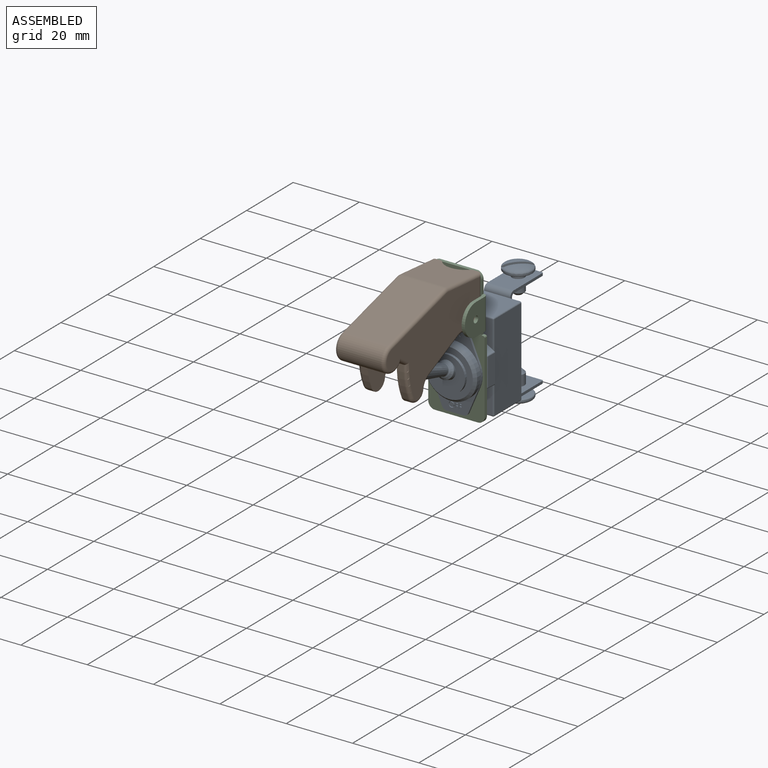
[diagram: assembled view]
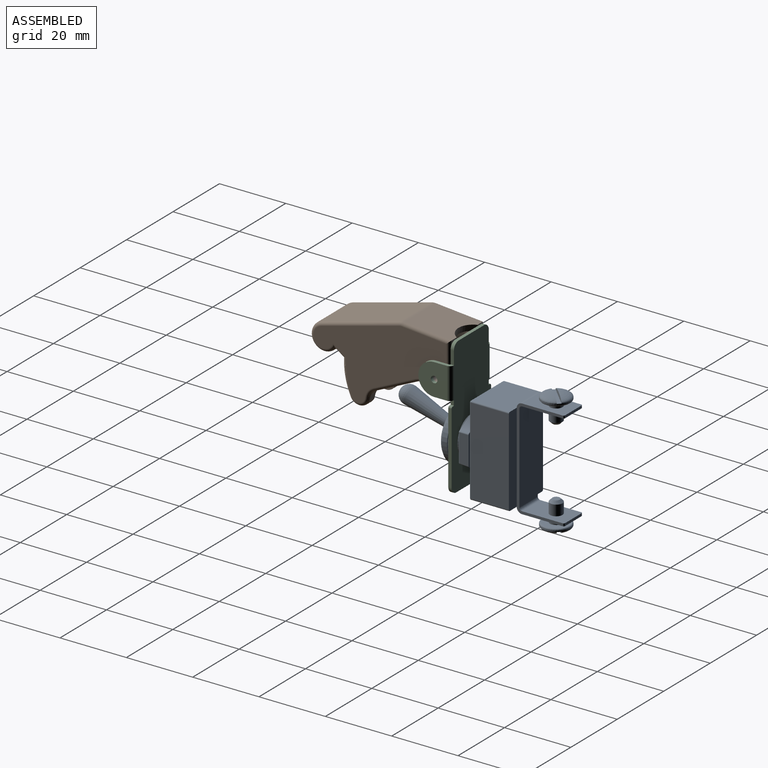
[diagram: assembled view, second angle]
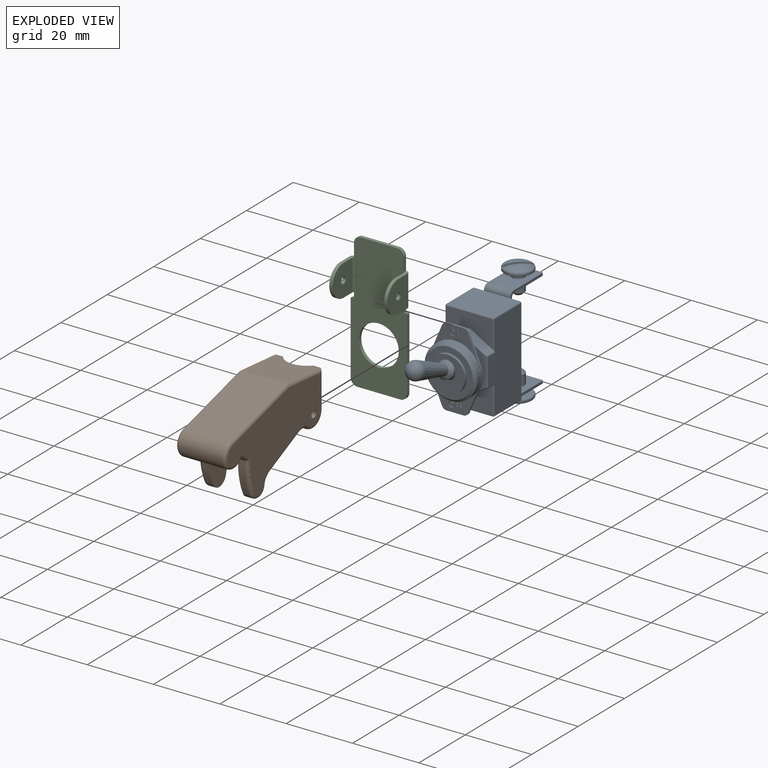
[diagram: exploded view]
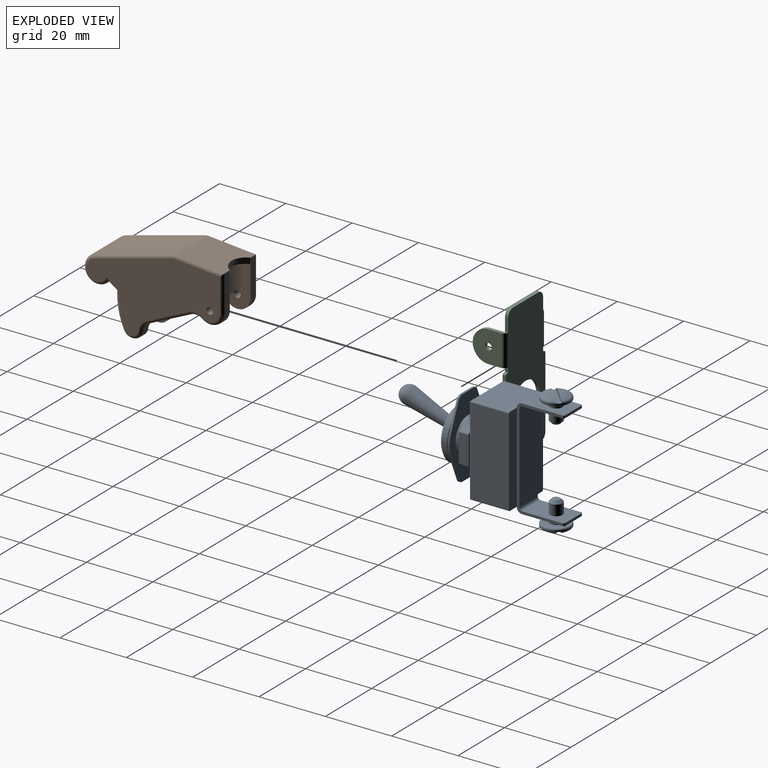
[diagram: exploded view, second angle]
ASSEMBLY  parts=3 mates=6
PART A: 168 faces, bbox 15.9x37.3x52.1 mm
  f0: plane 23.81x15.88mm, normal (0,0,1), area 190.6mm2, adj f92,f93,f94,f95,f96,f97,f98,f99
  f1: plane 10.72x10.72mm, normal (0,0,1), area 68.6mm2, adj f100,f110
  f2: cylinder r=5.36mm len=10.72mm, axis (0,0,-1), area 80.2mm2, adj f3,f91
  f3: plane 16.68x14.44mm, normal (0,0,1), area 90.4mm2, adj f2,f74,f79,f80,f85,f86,f90
  f4: plane 13.9x8.18mm, normal (0,0,1), area 85.7mm2, adj f39,f40,f44,f68,f69,f73
  f5: plane 13.9x8.18mm, normal (0,0,1), area 85.7mm2, adj f34,f39,f40,f66,f71,f87
  f6: revolved ~6.83x6.83mm, area 27.6mm2, adj f56,f60
  f7: revolved ~6.83x6.83mm, area 27.6mm2, adj f56,f61
  f8: revolved ~6.83x6.83mm, area 27.6mm2, adj f54,f57
  f9: revolved ~6.83x6.83mm, area 27.6mm2, adj f54,f58
  f10: plane 12.7x7.94mm, normal (0,-1,0), area 89.6mm2, adj f24,f25,f27,f28,f29,f30,f49
  f11: plane 12.7x7.94mm, normal (0,1,0), area 89.6mm2, adj f25,f26,f27,f28,f29,f30,f48
  f12: plane 12.7x7.94mm, normal (0,-1,0), area 89.6mm2, adj f20,f21,f27,f28,f31,f32,f47
  f13: plane 12.7x7.94mm, normal (0,1,0), area 89.6mm2, adj f21,f22,f27,f28,f31,f32,f46
  f14: plane 26.99x3.37mm, normal (0,0,-1), area 91mm2, adj f15,f17,f18,f27,f33,f38
  f15: plane 13.89x11.51mm, normal (0,-1,0), area 159.9mm2, adj f14,f16,f20,f33,f34,f35
  f16: plane 26.99x3.37mm, normal (0,0,-1), area 91mm2, adj f15,f17,f19,f28,f35,f41
  f17: plane 13.89x11.51mm, normal (0,1,0), area 159.9mm2, adj f14,f16,f26,f38,f41,f44
  f18: plane 26.19x11.51mm, normal (1,0,0), area 301.5mm2, adj f14,f33,f38,f39
  f19: plane 26.19x11.51mm, normal (-1,0,0), area 301.5mm2, adj f16,f35,f40,f41
  f20: cylinder r=1.59mm len=7.94mm, axis (-1,0,0), area 19.8mm2, adj f12,f15,f27,f28
  f21: plane 7.14x0.79mm, normal (0,0,-1), area 5.7mm2, adj f12,f13,f31,f32
  f22: cylinder r=0.79mm len=7.94mm, axis (-1,0,0), area 9.9mm2, adj f13,f23,f27,f28
  f23: plane 26.99x7.94mm, normal (0,0,-1), area 214.2mm2, adj f22,f24,f27,f28
  f24: cylinder r=0.79mm len=7.94mm, axis (-1,0,0), area 9.9mm2, adj f10,f23,f27,f28
  f25: plane 7.14x0.79mm, normal (0,0,-1), area 5.7mm2, adj f10,f11,f29,f30
  f26: cylinder r=1.59mm len=7.94mm, axis (-1,0,0), area 19.8mm2, adj f11,f17,f27,f28
  f27: plane 30.16x13.89mm, normal (1,0,0), area 43.9mm2, adj f10,f11,f12,f13,f14,f20,f22,f23
  f28: plane 30.16x13.89mm, normal (-1,0,0), area 43.9mm2, adj f10,f11,f12,f13,f16,f20,f22,f23
  f29: cylinder r=0.4mm len=0.79mm, axis (0,1,0), area 0.5mm2, adj f10,f11,f25,f27
  f30: cylinder r=0.4mm len=0.79mm, axis (0,-1,0), area 0.5mm2, adj f10,f11,f25,f28
  f31: cylinder r=0.4mm len=0.79mm, axis (0,-1,0), area 0.5mm2, adj f12,f13,f21,f28
  f32: cylinder r=0.4mm len=0.79mm, axis (0,1,0), area 0.5mm2, adj f12,f13,f21,f27
  f33: cylinder r=0.4mm len=11.51mm, axis (0,0,1), area 7.2mm2, adj f14,f15,f18,f36
  f34: cylinder r=0.4mm len=13.89mm, axis (-1,0,0), area 8.7mm2, adj f5,f15,f36,f37
  f35: cylinder r=0.4mm len=11.51mm, axis (0,0,-1), area 7.2mm2, adj f15,f16,f19,f37
  f36: sphere r=0.4mm, area 0.2mm2, adj f33,f34,f39
  f37: sphere r=0.4mm, area 0.3mm2, adj f34,f35,f40
  f38: cylinder r=0.4mm len=11.51mm, axis (0,0,-1), area 7.2mm2, adj f14,f17,f18,f42
  f39: cylinder r=0.4mm len=26.19mm, axis (0,1,0), area 16.3mm2, adj f4,f5,f18,f36,f42,f65
  f40: cylinder r=0.4mm len=26.19mm, axis (0,-1,0), area 16.3mm2, adj f4,f5,f19,f37,f43,f72
  f41: cylinder r=0.4mm len=11.51mm, axis (0,0,1), area 7.2mm2, adj f16,f17,f19,f43
  f42: sphere r=0.4mm, area 0.2mm2, adj f38,f39,f44
  f43: sphere r=0.4mm, area 0.3mm2, adj f40,f41,f44
  f44: cylinder r=0.4mm len=13.89mm, axis (-1,0,0), area 8.7mm2, adj f4,f17,f42,f43
  f45: plane 2.18x2.18mm, normal (0,1,0), area 3.7mm2, adj f52
  f46: cylinder r=1.89mm len=3.77mm, axis (0,-1,0), area 37.6mm2, adj f13,f52
  f47: cylinder r=1.89mm len=3.77mm, axis (0,-1,0), area 18.8mm2, adj f12,f53
  f48: cylinder r=1.89mm len=3.77mm, axis (0,-1,0), area 18.8mm2, adj f11,f55
  f49: cylinder r=1.89mm len=3.77mm, axis (0,-1,0), area 37.6mm2, adj f10,f51
  f50: plane 2.18x2.18mm, normal (0,-1,0), area 3.7mm2, adj f51
  f51: cone r=1.09mm half-angle=45deg, axis (0,1,0), area 10.5mm2, adj f49,f50
  f52: cone r=1.89mm half-angle=45deg, axis (0,-1,0), area 10.5mm2, adj f45,f46
  f53: plane 7.74x7.74mm, normal (0,1,0), area 35.9mm2, adj f47,f64
  f54: cylinder r=4.27mm len=8.53mm, axis (0,1,0), area 10.6mm2, adj f8,f9,f59,f64
  f55: plane 7.74x7.74mm, normal (0,-1,0), area 35.9mm2, adj f48,f63
  f56: cylinder r=4.27mm len=8.53mm, axis (0,-1,0), area 10.6mm2, adj f6,f7,f62,f63
  f57: plane 5.98x5.97mm, normal (-0.71,0,-0.71), area 7.8mm2, adj f8,f59
  f58: plane 5.98x5.97mm, normal (0.71,0,0.71), area 7.8mm2, adj f9,f59
  f59: plane 6.82x6.81mm, normal (0,-1,0), area 10.1mm2, adj f54,f57,f58
  f60: plane 5.98x5.97mm, normal (-0.71,0,-0.71), area 7.8mm2, adj f6,f62
  f61: plane 5.98x5.97mm, normal (0.71,0,0.71), area 7.8mm2, adj f7,f62
  f62: plane 6.82x6.81mm, normal (0,1,0), area 10.1mm2, adj f56,f60,f61
  f63: torus R=3.87mm, axis (0,1,0), area 16.1mm2, adj f55,f56
  f64: torus R=3.87mm, axis (0,-1,0), area 16.1mm2, adj f53,f54
  f65: plane 9.86x0.8mm, normal (0,0,-1), area 7.4mm2, adj f39,f66,f67,f68,f75,f81
  f66: plane 7.34x4.31mm, normal (0.5,-0.87,0.04), area 23.5mm2, adj f5,f65,f81,f86,f87
  f67: plane 8.48x2.8mm, normal (1,0,0.04), area 23.5mm2, adj f65,f75,f80,f81
  f68: plane 7.34x4.31mm, normal (0.5,0.87,0.04), area 23.5mm2, adj f4,f65,f73,f74,f75
  f69: plane 7.34x4.31mm, normal (-0.5,0.87,0.04), area 23.5mm2, adj f4,f72,f73,f78,f79
  f70: plane 8.48x2.8mm, normal (-1,0,0.04), area 23.5mm2, adj f72,f78,f84,f85
  f71: plane 7.34x4.31mm, normal (-0.5,-0.87,0.04), area 23.5mm2, adj f5,f72,f84,f87,f90
  f72: plane 9.86x0.8mm, normal (0,0,-1), area 7.4mm2, adj f40,f69,f70,f71,f78,f84
  f73: cylinder r=0.4mm len=2.8mm, axis (0,0.05,-1), area 1.2mm2, adj f4,f68,f69,f76
  f74: cylinder r=0.4mm len=7.42mm, axis (-0.87,0.5,0), area 5.1mm2, adj f3,f68,f76,f77
  f75: cylinder r=0.4mm len=2.8mm, axis (0.04,0.03,-1), area 1.2mm2, adj f65,f67,f68,f77
  f76: sphere r=0.4mm, area 0.2mm2, adj f73,f74,f79
  f77: sphere r=0.4mm, area 0.1mm2, adj f74,f75,f80
  f78: cylinder r=0.4mm len=2.8mm, axis (-0.04,0.03,-1), area 1.2mm2, adj f69,f70,f72,f82
  f79: cylinder r=0.4mm len=7.42mm, axis (-0.87,-0.5,0), area 5.1mm2, adj f3,f69,f76,f82
  f80: cylinder r=0.4mm len=8.34mm, axis (0,1,0), area 5.1mm2, adj f3,f67,f77,f83
  f81: cylinder r=0.4mm len=2.8mm, axis (0.04,-0.03,-1), area 1.2mm2, adj f65,f66,f67,f83
  f82: sphere r=0.4mm, area 0.1mm2, adj f78,f79,f85
  f83: sphere r=0.4mm, area 0.1mm2, adj f80,f81,f86
  f84: cylinder r=0.4mm len=2.8mm, axis (-0.04,-0.03,-1), area 1.2mm2, adj f70,f71,f72,f88
  f85: cylinder r=0.4mm len=8.34mm, axis (0,-1,0), area 5.1mm2, adj f3,f70,f82,f88
  f86: cylinder r=0.4mm len=7.42mm, axis (0.87,0.5,0), area 5.1mm2, adj f3,f66,f83,f89
  f87: cylinder r=0.4mm len=2.8mm, axis (0,-0.05,-1), area 1.2mm2, adj f5,f66,f71,f89
  f88: sphere r=0.4mm, area 0.1mm2, adj f84,f85,f90
  f89: sphere r=0.4mm, area 0.2mm2, adj f86,f87,f90
  f90: cylinder r=0.4mm len=7.42mm, axis (0.87,-0.5,0), area 5.1mm2, adj f3,f71,f88,f89
  f91: plane 23.81x15.88mm, normal (0,0,-1), area 196.5mm2, adj f2,f92,f93,f94,f95,f96,f97,f98
  f92: plane 7.84x3.33mm, normal (-0.92,0.39,0), area 5.1mm2, adj f0,f91,f99,f108
  f93: plane 5.04x0.6mm, normal (0,1,0), area 3mm2, adj f0,f91,f107,f108
  f94: plane 7.84x3.33mm, normal (0.92,0.39,0), area 5.1mm2, adj f0,f91,f95,f107
  f95: cylinder r=7.94mm len=6.2mm, axis (0,0,1), area 3.8mm2, adj f0,f91,f94,f96
  f96: plane 7.84x3.33mm, normal (0.92,-0.39,0), area 5.1mm2, adj f0,f91,f95,f105
  f97: plane 5.04x0.6mm, normal (0,-1,0), area 3mm2, adj f0,f91,f105,f106
  f98: plane 7.84x3.33mm, normal (-0.92,-0.39,0), area 5.1mm2, adj f0,f91,f99,f106
  f99: cylinder r=7.94mm len=6.2mm, axis (0,0,1), area 3.8mm2, adj f0,f91,f92,f98
  f100: cylinder r=5.36mm len=10.72mm, axis (0,0,-1), area 26.7mm2, adj f1,f101
  f101: plane 14.29x14.29mm, normal (0,0,1), area 70.1mm2, adj f100,f109
  f102: cylinder r=7.94mm len=15.88mm, axis (0,0,1), area 79.2mm2, adj f103,f109
  f103: plane 15.88x15.88mm, normal (0,0,-1), area 107.7mm2, adj f102,f104
  f104: cylinder r=5.36mm len=10.72mm, axis (0,0,-1), area 6.7mm2, adj f0,f103
  f105: cylinder r=1.59mm len=1.46mm, axis (0,0,1), area 1.1mm2, adj f0,f91,f96,f97
  f106: cylinder r=1.59mm len=1.46mm, axis (0,0,1), area 1.1mm2, adj f0,f91,f97,f98
  f107: cylinder r=1.59mm len=1.46mm, axis (0,0,1), area 1.1mm2, adj f0,f91,f93,f94
  f108: cylinder r=1.59mm len=1.46mm, axis (0,0,1), area 1.1mm2, adj f0,f91,f92,f93
  f109: cone r=7.14mm half-angle=45deg, axis (0,0,-1), area 53.2mm2, adj f101,f102
  f110: cylinder r=2.54mm len=5.42mm, axis (0,0.34,0.94), area 15mm2, adj f1,f114
  f111: cone r=1.59mm half-angle=4.9deg, axis (0,0.34,0.94), area 165.4mm2, adj f112,f113
  f112: sphere r=2.68mm, area 48.9mm2, adj f111
  f113: torus R=2.02mm, axis (0,-0.34,-0.94), area 6.1mm2, adj f111,f114
  f114: cone r=1.93mm half-angle=38.4deg, axis (0,-0.34,-0.94), area 13.8mm2, adj f110,f113
  f115: extruded ~0.84x0.82mm, area 0.5mm2, adj f0,f116,f118,f119
  f116: extruded ~0.84x0.83mm, area 0.5mm2, adj f0,f115,f117,f119
  f117: extruded ~0.84x0.83mm, area 0.5mm2, adj f0,f116,f118,f119
  f118: extruded ~0.84x0.83mm, area 0.5mm2, adj f0,f115,f117,f119
  f119: plane 1.67x1.67mm, normal (0,0,1), area 0.7mm2, adj f115,f116,f117,f118,f120,f121,f122,f123
  f120: extruded ~0.7x0.67mm, area 0.4mm2, adj f119,f121,f123,f124
  f121: extruded ~0.7x0.67mm, area 0.4mm2, adj f119,f120,f122,f124
  f122: extruded ~0.69x0.67mm, area 0.4mm2, adj f119,f121,f123,f124
  f123: extruded ~0.69x0.68mm, area 0.4mm2, adj f119,f120,f122,f124
  f124: plane 1.38x1.34mm, normal (0,0,1), area 1.5mm2, adj f120,f121,f122,f123
  f125: plane 0.4x0.14mm, normal (0,1,0), area 0.1mm2, adj f0,f126,f134,f135
  f126: plane 1.59x0.4mm, normal (1,0,0), area 0.6mm2, adj f0,f125,f127,f135
  f127: plane 0.4x0.03mm, normal (0,-1,0), area 0mm2, adj f0,f126,f128,f135
  f128: plane 1.25x1.05mm, normal (-0.77,-0.64,0), area 0.6mm2, adj f0,f127,f129,f135
  f129: plane 1.25x0.4mm, normal (1,0,0), area 0.5mm2, adj f0,f128,f130,f135
  f130: plane 0.4x0.14mm, normal (0,-1,0), area 0.1mm2, adj f0,f129,f131,f135
  f131: plane 1.59x0.4mm, normal (-1,0,0), area 0.6mm2, adj f0,f130,f132,f135
  f132: plane 0.4x0.03mm, normal (0,1,0), area 0mm2, adj f0,f131,f133,f135
  f133: plane 1.25x1.05mm, normal (0.77,0.64,0), area 0.6mm2, adj f0,f132,f134,f135
  f134: plane 1.25x0.4mm, normal (-1,0,0), area 0.5mm2, adj f0,f125,f133,f135
  f135: plane 1.59x1.22mm, normal (0,0,1), area 0.6mm2, adj f125,f126,f127,f128,f129,f130,f131,f132
  f136: extruded ~0.84x0.82mm, area 0.5mm2, adj f0,f137,f139,f140
  f137: extruded ~0.84x0.83mm, area 0.5mm2, adj f0,f136,f138,f140
  f138: extruded ~0.84x0.83mm, area 0.5mm2, adj f0,f137,f139,f140
  f139: extruded ~0.84x0.83mm, area 0.5mm2, adj f0,f136,f138,f140
  f140: plane 1.67x1.67mm, normal (0,0,1), area 0.7mm2, adj f136,f137,f138,f139,f141,f142,f143,f144
  f141: extruded ~0.7x0.67mm, area 0.4mm2, adj f140,f142,f144,f145
  f142: extruded ~0.7x0.67mm, area 0.4mm2, adj f140,f141,f143,f145
  f143: extruded ~0.69x0.67mm, area 0.4mm2, adj f140,f142,f144,f145
  f144: extruded ~0.69x0.68mm, area 0.4mm2, adj f140,f141,f143,f145
  f145: plane 1.38x1.34mm, normal (0,0,1), area 1.5mm2, adj f141,f142,f143,f144
  f146: plane 1.59x0.4mm, normal (1,0,0), area 0.6mm2, adj f0,f147,f155,f156
  f147: plane 0.77x0.4mm, normal (0,-1,0), area 0.3mm2, adj f0,f146,f148,f156
  f148: plane 0.4x0.16mm, normal (-1,0,0), area 0.1mm2, adj f0,f147,f149,f156
  f149: plane 0.63x0.4mm, normal (0,1,0), area 0.3mm2, adj f0,f148,f150,f156
  f150: plane 0.49x0.4mm, normal (-1,0,0), area 0.2mm2, adj f0,f149,f151,f156
  f151: plane 0.63x0.4mm, normal (0,-1,0), area 0.3mm2, adj f0,f150,f152,f156
  f152: plane 0.4x0.16mm, normal (-1,0,0), area 0.1mm2, adj f0,f151,f153,f156
  f153: plane 0.63x0.4mm, normal (0,1,0), area 0.3mm2, adj f0,f152,f154,f156
  f154: plane 0.77x0.4mm, normal (-1,0,0), area 0.3mm2, adj f0,f153,f155,f156
  f155: plane 0.4x0.14mm, normal (0,1,0), area 0.1mm2, adj f0,f146,f154,f156
  f156: plane 1.59x0.77mm, normal (0,0,1), area 0.4mm2, adj f146,f147,f148,f149,f150,f151,f152,f153
  f157: plane 1.59x0.4mm, normal (1,0,0), area 0.6mm2, adj f0,f158,f166,f167
  f158: plane 0.77x0.4mm, normal (0,-1,0), area 0.3mm2, adj f0,f157,f159,f167
  f159: plane 0.4x0.16mm, normal (-1,0,0), area 0.1mm2, adj f0,f158,f160,f167
  f160: plane 0.63x0.4mm, normal (0,1,0), area 0.3mm2, adj f0,f159,f161,f167
  f161: plane 0.49x0.4mm, normal (-1,0,0), area 0.2mm2, adj f0,f160,f162,f167
  f162: plane 0.63x0.4mm, normal (0,-1,0), area 0.3mm2, adj f0,f161,f163,f167
  f163: plane 0.4x0.16mm, normal (-1,0,0), area 0.1mm2, adj f0,f162,f164,f167
  f164: plane 0.63x0.4mm, normal (0,1,0), area 0.3mm2, adj f0,f163,f165,f167
  f165: plane 0.77x0.4mm, normal (-1,0,0), area 0.3mm2, adj f0,f164,f166,f167
  f166: plane 0.4x0.14mm, normal (0,1,0), area 0.1mm2, adj f0,f157,f165,f167
  f167: plane 1.59x0.77mm, normal (0,0,1), area 0.4mm2, adj f157,f158,f159,f160,f161,f162,f163,f164
PART B: 59 faces, bbox 42.7x15x26.5 mm
  f0: cylinder r=22.07mm len=10.21mm, axis (0,1,0), area 21mm2, adj f2,f3,f5,f9
  f1: cylinder r=3.5mm len=2.71mm, axis (0,1,0), area 7mm2, adj f2,f5,f6,f15
  f2: cylinder r=3mm len=5.69mm, axis (0,1,0), area 15.4mm2, adj f0,f1,f5,f16
  f3: plane 2.46x2mm, normal (0.57,0,-0.82), area 6mm2, adj f0,f5,f10,f20
  f4: plane 9x7.14mm, normal (-0.26,0,-0.97), area 66.6mm2, adj f5,f20,f23,f24
  f5: plane 22.25x20.79mm, normal (0,1,0), area 235.2mm2, adj f0,f1,f2,f3,f4,f6,f20,f24
  f6: plane 12.59x5.87mm, normal (-0.42,0,-0.91), area 27.8mm2, adj f1,f5,f7,f14,f25
  f7: cylinder r=3.5mm len=3.59mm, axis (0,1,0), area 7.6mm2, adj f6,f13,f25,f26
  f8: cylinder r=1mm len=3mm, axis (0,1,0), area 18.8mm2, adj f25,f28
  f9: torus R=21.07mm, axis (0,1,0), area 16.5mm2, adj f0,f10,f16,f28
  f10: cylinder r=1mm len=4.45mm, axis (-0.82,0,-0.57), area 5.7mm2, adj f3,f9,f11,f28
  f11: torus R=3mm, axis (0,1,0), area 22.5mm2, adj f10,f17,f20,f28
  f12: torus R=3mm, axis (0,1,0), area 12.7mm2, adj f13,f26,f27,f28
  f13: torus R=4.5mm, axis (0,-1,0), area 6.6mm2, adj f7,f12,f14,f28
  f14: cylinder r=1mm len=13.01mm, axis (-0.91,0,0.42), area 21.8mm2, adj f6,f13,f15,f28
  f15: torus R=4.5mm, axis (0,-1,0), area 6.1mm2, adj f1,f14,f16,f28
  f16: torus R=2mm, axis (0,1,0), area 10.7mm2, adj f2,f9,f15,f28
  f17: cylinder r=1mm len=23.81mm, axis (0.97,0,-0.26), area 38.3mm2, adj f11,f28,f29,f30
  f18: cylinder r=22.07mm len=10.21mm, axis (0,1,0), area 21mm2, adj f19,f21,f23,f31
  f19: cylinder r=3mm len=5.69mm, axis (0,1,0), area 15.4mm2, adj f18,f22,f23,f32
  f20: cylinder r=4mm len=13mm, axis (0,-1,0), area 251mm2, adj f3,f4,f5,f11,f21,f23,f30,f37
  f21: plane 2.46x2mm, normal (0.57,0,-0.82), area 6mm2, adj f18,f20,f23,f38
  f22: cylinder r=3.5mm len=2.71mm, axis (0,1,0), area 7mm2, adj f19,f23,f33,f40
  f23: plane 22.25x20.79mm, normal (0,-1,0), area 235.2mm2, adj f4,f18,f19,f20,f21,f22,f24,f40
  f24: plane 15.11x11.03mm, normal (0.59,0,-0.81), area 168.3mm2, adj f4,f5,f23,f44
  f25: plane 27.02x15.23mm, normal (0,1,0), area 263.2mm2, adj f6,f7,f8,f26,f41,f42,f43,f44
  f26: cylinder r=4mm len=6.42mm, axis (0,1,0), area 17.8mm2, adj f7,f12,f25,f47
  f27: cylinder r=1mm len=11mm, axis (0,0,1), area 16.8mm2, adj f12,f28,f47,f48
  f28: plane 40.06x24.26mm, normal (0,-1,0), area 520mm2, adj f8,f9,f10,f11,f12,f13,f14,f15
  f29: torus R=2.5mm, axis (0,1,0), area 1.7mm2, adj f17,f28,f48,f49
  f30: plane 23.55x13mm, normal (0.26,0,0.97), area 317mm2, adj f17,f20,f36,f49
  f31: torus R=21.07mm, axis (0,-1,0), area 16.5mm2, adj f18,f32,f38,f51
  f32: torus R=2mm, axis (0,-1,0), area 10.7mm2, adj f19,f31,f33,f51
  f33: torus R=4.5mm, axis (0,1,0), area 6.1mm2, adj f22,f32,f34,f51
  f34: cylinder r=1mm len=13.01mm, axis (-0.91,0,0.42), area 21.8mm2, adj f33,f39,f40,f51
  f35: torus R=2.5mm, axis (0,-1,0), area 1.7mm2, adj f36,f49,f50,f51
  f36: cylinder r=1mm len=23.81mm, axis (0.97,0,-0.26), area 38.3mm2, adj f30,f35,f37,f51
  f37: torus R=3mm, axis (0,-1,0), area 22.5mm2, adj f20,f36,f38,f51
  f38: cylinder r=1mm len=4.45mm, axis (-0.82,0,-0.57), area 5.7mm2, adj f21,f31,f37,f51
  f39: torus R=4.5mm, axis (0,1,0), area 6.6mm2, adj f34,f51,f52,f53
  f40: plane 12.59x5.87mm, normal (-0.42,0,-0.91), area 27.8mm2, adj f22,f23,f34,f53,f54
  f41: plane 14.5x9mm, normal (0.09,0,-1), area 114.5mm2, adj f25,f42,f46,f54
  f42: plane 12.36x9mm, normal (-0.26,0,-0.97), area 115.2mm2, adj f25,f41,f43,f54
  f43: plane 14.54x10.61mm, normal (-0.59,0,0.81), area 162mm2, adj f25,f42,f44,f54
  f44: plane 9x0.81mm, normal (-0.81,0,-0.59), area 9mm2, adj f24,f25,f43,f54
  f45: cylinder r=1mm len=3mm, axis (0,1,0), area 18.8mm2, adj f51,f54
  f46: cylinder r=5.21mm len=9mm, axis (0.09,0,-1), area 19.2mm2, adj f25,f41,f54,f55
  f47: plane 11x2mm, normal (-1,0,0), area 22mm2, adj f25,f26,f27,f55
  f48: cylinder r=1mm len=14.42mm, axis (1,0,0.09), area 22.1mm2, adj f27,f28,f29,f55
  f49: cylinder r=3.5mm len=13mm, axis (0,-1,0), area 15.9mm2, adj f29,f30,f35,f55
  f50: cylinder r=1mm len=14.42mm, axis (1,0,0.09), area 22.1mm2, adj f35,f51,f55,f56
  f51: plane 40.06x24.26mm, normal (0,1,0), area 520mm2, adj f31,f32,f33,f34,f35,f36,f37,f38
  f52: torus R=3mm, axis (0,-1,0), area 12.7mm2, adj f39,f51,f56,f57
  f53: cylinder r=3.5mm len=3.59mm, axis (0,1,0), area 7.6mm2, adj f39,f40,f54,f57
  f54: plane 27.02x15.23mm, normal (0,-1,0), area 263.2mm2, adj f40,f41,f42,f43,f44,f45,f46,f53
  f55: plane 14.33x13mm, normal (-0.09,0,1), area 170.5mm2, adj f46,f47,f48,f49,f50,f58
  f56: cylinder r=1mm len=11mm, axis (0,0,1), area 16.8mm2, adj f50,f51,f52,f58
  f57: cylinder r=4mm len=6.42mm, axis (0,1,0), area 17.8mm2, adj f52,f53,f54,f58
  f58: plane 11x2mm, normal (-1,0,0), area 22mm2, adj f54,f55,f56,f57
PART C: 35 faces, bbox 17.5x9.9x41 mm
  f0: cylinder r=1mm len=2mm, axis (1,0,0), area 6.3mm2, adj f4,f6
  f1: cylinder r=1mm len=2mm, axis (1,0,0), area 6.3mm2, adj f5,f8
  f2: cylinder r=4.75mm len=9.5mm, axis (-1,0,0), area 14.9mm2, adj f5,f8,f9,f10
  f3: cylinder r=4.75mm len=9.5mm, axis (-1,0,0), area 14.9mm2, adj f4,f6,f7,f11
  f4: plane 9.5x8.61mm, normal (-1,0,0), area 68.9mm2, adj f0,f3,f7,f11,f12
  f5: plane 9.5x8.61mm, normal (1,0,0), area 68.9mm2, adj f1,f2,f9,f10,f13
  f6: plane 9.5x8.61mm, normal (1,0,0), area 68.9mm2, adj f0,f3,f7,f11,f15
  f7: plane 5.11x1.25mm, normal (0,0,1), area 5mm2, adj f3,f4,f6,f12,f15,f16
  f8: plane 9.5x8.61mm, normal (-1,0,0), area 68.9mm2, adj f1,f2,f9,f10,f21
  f9: plane 5.11x1.25mm, normal (0,0,1), area 5mm2, adj f2,f5,f8,f13,f20,f21
  f10: plane 5.11x1.25mm, normal (0,0,-1), area 5mm2, adj f2,f5,f8,f13,f21,f22
  f11: plane 5.11x1.25mm, normal (0,0,-1), area 5mm2, adj f3,f4,f6,f12,f15,f29
  f12: cylinder r=0.25mm len=9.5mm, axis (0,0,-1), area 3.7mm2, adj f4,f7,f11,f30
  f13: cylinder r=0.25mm len=9.5mm, axis (0,0,1), area 3.7mm2, adj f5,f9,f10,f30
  f14: cylinder r=6mm len=12mm, axis (0,-1,0), area 37.7mm2, adj f30,f32
  f15: cylinder r=1.25mm len=9.5mm, axis (0,0,-1), area 18.7mm2, adj f6,f7,f11,f32
  f16: plane 4x1mm, normal (1,0,0), area 4mm2, adj f7,f17,f30,f32
  f17: cylinder r=2mm len=2mm, axis (0,1,0), area 3.1mm2, adj f16,f18,f30,f32
  f18: plane 11x1mm, normal (0,0,1), area 11mm2, adj f17,f19,f30,f32
  f19: cylinder r=2mm len=2mm, axis (0,-1,0), area 3.1mm2, adj f18,f20,f30,f32
  f20: plane 4x1mm, normal (-1,0,0), area 4mm2, adj f9,f19,f30,f32
  f21: cylinder r=1.25mm len=9.5mm, axis (0,0,1), area 18.7mm2, adj f8,f9,f10,f32
  f22: plane 1.5x1mm, normal (-1,0,0), area 1.5mm2, adj f10,f23,f30,f32
  f23: plane 1x0.5mm, normal (0,0,1), area 0.5mm2, adj f22,f24,f30,f32
  f24: cylinder r=0.5mm len=1mm, axis (0,1,0), area 0.8mm2, adj f23,f25,f30,f32
  f25: plane 21.5x1mm, normal (-1,0,0), area 21.5mm2, adj f24,f26,f30,f32
  f26: cylinder r=2mm len=2mm, axis (0,-1,0), area 3.1mm2, adj f25,f27,f30,f32
  f27: plane 13x1mm, normal (0,0,-1), area 13mm2, adj f26,f28,f30,f32
  f28: cylinder r=2mm len=2mm, axis (0,-1,0), area 3.1mm2, adj f27,f30,f31,f32
  f29: plane 1.5x1mm, normal (1,0,0), area 1.5mm2, adj f11,f30,f32,f33
  f30: plane 41x17mm, normal (0,-1,0), area 546.4mm2, adj f12,f13,f14,f16,f17,f18,f19,f20
  f31: plane 21.5x1mm, normal (1,0,0), area 21.5mm2, adj f28,f30,f32,f34
  f32: plane 41x17mm, normal (0,1,0), area 546.4mm2, adj f14,f15,f16,f17,f18,f19,f20,f21
  f33: plane 1x0.5mm, normal (0,0,1), area 0.5mm2, adj f29,f30,f32,f34
  f34: cylinder r=0.5mm len=1mm, axis (0,-1,0), area 0.8mm2, adj f30,f31,f32,f33
PLACE A rot(axis=(1,0,0),90deg) t=(0,10.51,-7.5)mm
PLACE B rot(axis=(0,0,-1),90deg) t=(-4.25,-1.11,9.75)mm
PLACE C at identity fixed
MATE planar B.f51 <-> C.f4  axis (1,0,0) through (7.75,-20.63,11.59)mm
MATE cylindrical B.f8 <-> C.f2  axis (1,0,0) through (-5.75,-5.11,9.75)mm
MATE planar A.f95 <-> C.f30  axis (0,1,0) through (0,-1,-7.5)mm
MATE parallel A.f97 <-> C.f27  axis (0,0,-1) through (0,-1.3,-19.41)mm
MATE cylindrical A.f109 <-> C.f14  axis (0,1,0) through (0,0.19,-7.5)mm
MATE parallel B.f47 <-> C.f30  axis (0,1,0) through (-5.25,-1.11,15.25)mm
